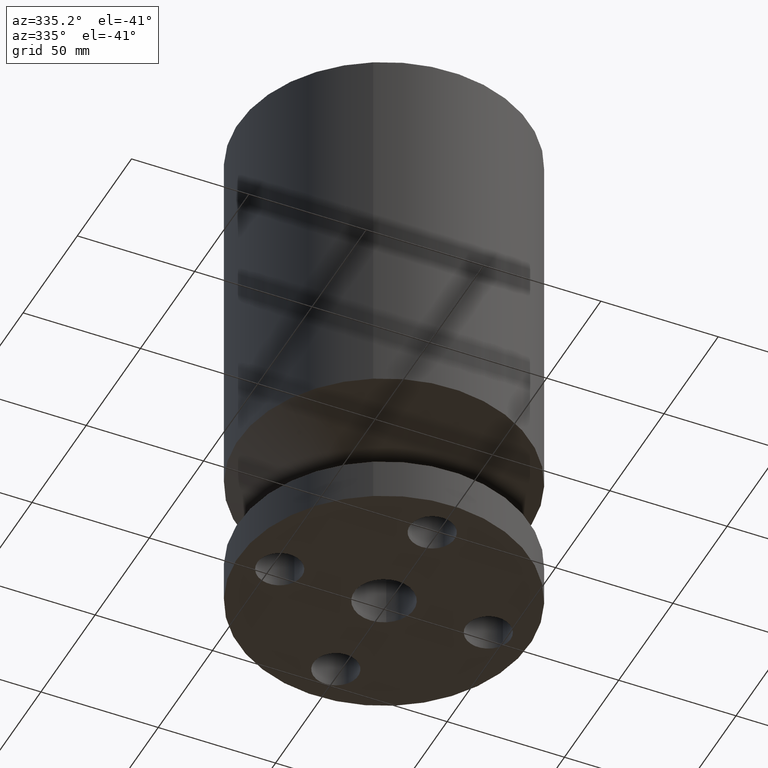
[diagram: clean part render]
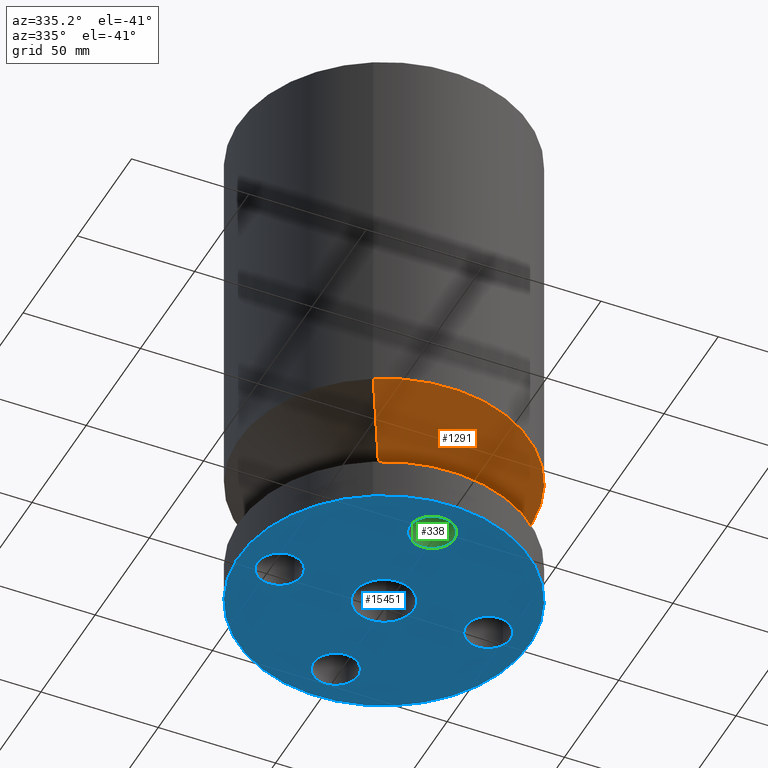
[diagram: same view with three faces highlighted in distinct colors, each labeled with its STEP entity id]
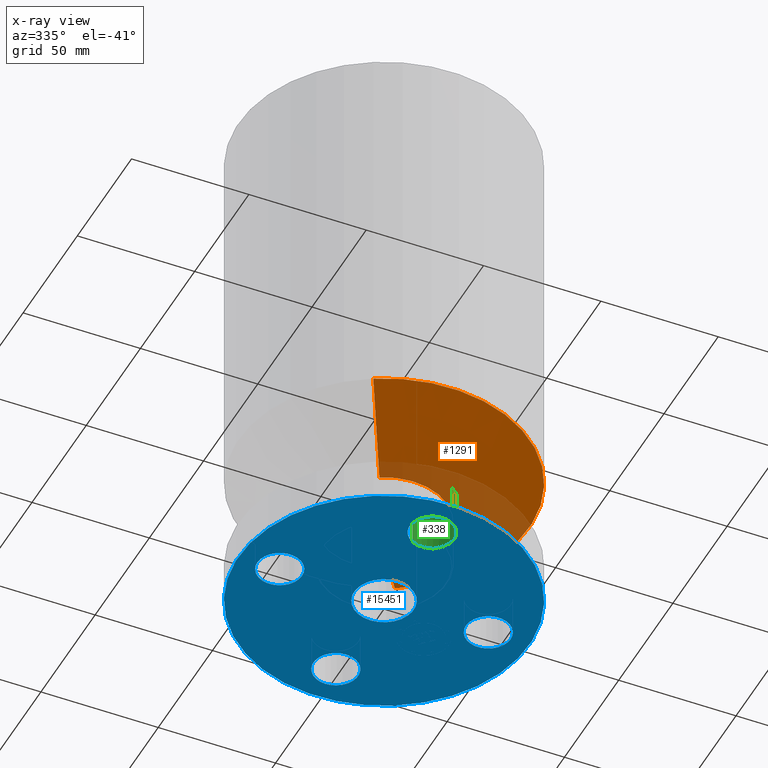
[diagram: x-ray of the same camera — body ghosted, the three highlighted faces saturated]
A machine part, auxiliary view with three faces highlighted in distinct colors.
The next image is the same camera in x-ray (body ghosted, the three faces saturated) — at least one of them is partly hidden behind the body in this view.
Their STEP definitions:

[orange] entity #1291 — the highlighted conical surface has half-angle 60 deg.
#719=AXIS2_PLACEMENT_3D('Circle Axis2P3D',#717,#718,$) ;
#1264=AXIS2_PLACEMENT_3D('Cone Axis2P3D',#1261,#1262,#1263) ;
#1275=AXIS2_PLACEMENT_3D('Circle Axis2P3D',#1273,#1274,$) ;
#714=CARTESIAN_POINT('Vertex',(0.508191070922,0.930237515608,1.57000000001)) ;
#717=CARTESIAN_POINT('Axis2P3D Location',(0.,0.,1.57000000001)) ;
#721=CARTESIAN_POINT('Vertex',(-0.508191070922,-0.930237515608,1.57000000001)) ;
#1261=CARTESIAN_POINT('Axis2P3D Location',(0.,0.,1.57000000001)) ;
#1266=CARTESIAN_POINT('Line Origine',(0.838994692561,1.53576948331,1.96837168575)) ;
#1270=CARTESIAN_POINT('Vertex',(1.1697983142,2.14130145102,2.36674337149)) ;
#1273=CARTESIAN_POINT('Axis2P3D Location',(0.,0.,2.36674337149)) ;
#1277=CARTESIAN_POINT('Vertex',(-1.1697983142,-2.14130145102,2.36674337149)) ;
#1280=CARTESIAN_POINT('Line Origine',(-0.838994692561,-1.53576948331,1.96837168575)) ;
#718=DIRECTION('Axis2P3D Direction',(0.,0.,-0.0393700787402)) ;
#1262=DIRECTION('Axis2P3D Direction',(-0.,-0.,0.0393700787402)) ;
#1263=DIRECTION('Axis2P3D XDirection',(0.0188750212049,0.0345504945626,0.)) ;
#1267=DIRECTION('Vector Direction',(0.0163462478604,0.0299216060045,0.0196850393701)) ;
#1274=DIRECTION('Axis2P3D Direction',(-0.,0.,0.0393700787402)) ;
#1281=DIRECTION('Vector Direction',(-0.0163462478604,-0.0299216060045,0.0196850393701)) ;
#1268=VECTOR('Line Direction',#1267,0.0393700787402) ;
#1282=VECTOR('Line Direction',#1281,0.0393700787402) ;
#1286=ORIENTED_EDGE('',*,*,#723,.F.) ;
#1287=ORIENTED_EDGE('',*,*,#1272,.T.) ;
#1288=ORIENTED_EDGE('',*,*,#1279,.T.) ;
#1289=ORIENTED_EDGE('',*,*,#1284,.F.) ;
#1291=ADVANCED_FACE('PartBody',(#1290),#1265,.T.) ;
#720=CIRCLE('generated circle',#719,1.06) ;
#1276=CIRCLE('generated circle',#1275,2.44000000001) ;
#1265=CONICAL_SURFACE('Cone',#1264,1.06,1.0471975512) ;
#723=EDGE_CURVE('',#715,#722,#720,.T.) ;
#1272=EDGE_CURVE('',#715,#1271,#1269,.T.) ;
#1279=EDGE_CURVE('',#1271,#1278,#1276,.F.) ;
#1284=EDGE_CURVE('',#722,#1278,#1283,.T.) ;
#1285=EDGE_LOOP('',(#1286,#1287,#1288,#1289)) ;
#1290=FACE_OUTER_BOUND('',#1285,.T.) ;
#1269=LINE('Line',#1266,#1268) ;
#1283=LINE('Line',#1280,#1282) ;
#715=VERTEX_POINT('',#714) ;
#722=VERTEX_POINT('',#721) ;
#1271=VERTEX_POINT('',#1270) ;
#1278=VERTEX_POINT('',#1277) ;

[blue] entity #15451 — the highlighted planar face has unit normal (0, 0, 1).
#51=AXIS2_PLACEMENT_3D('Circle Axis2P3D',#49,#50,$) ;
#200=AXIS2_PLACEMENT_3D('Circle Axis2P3D',#198,#199,$) ;
#217=AXIS2_PLACEMENT_3D('Circle Axis2P3D',#215,#216,$) ;
#243=AXIS2_PLACEMENT_3D('Circle Axis2P3D',#241,#242,$) ;
#310=AXIS2_PLACEMENT_3D('Circle Axis2P3D',#308,#309,$) ;
#329=AXIS2_PLACEMENT_3D('Circle Axis2P3D',#327,#328,$) ;
#353=AXIS2_PLACEMENT_3D('Circle Axis2P3D',#351,#352,$) ;
#372=AXIS2_PLACEMENT_3D('Circle Axis2P3D',#370,#371,$) ;
#396=AXIS2_PLACEMENT_3D('Circle Axis2P3D',#394,#395,$) ;
#415=AXIS2_PLACEMENT_3D('Circle Axis2P3D',#413,#414,$) ;
#15386=AXIS2_PLACEMENT_3D('Circle Axis2P3D',#15384,#15385,$) ;
#15412=AXIS2_PLACEMENT_3D('Circle Axis2P3D',#15410,#15411,$) ;
#15425=AXIS2_PLACEMENT_3D('Plane Axis2P3D',#15422,#15423,#15424) ;
#46=CARTESIAN_POINT('Vertex',(2.07909346072,0.179784576977,2.2401153548E-016)) ;
#49=CARTESIAN_POINT('Axis2P3D Location',(1.75000000001,0.,0.)) ;
#53=CARTESIAN_POINT('Vertex',(1.4209065393,-0.179784576977,2.2401153548E-016)) ;
#198=CARTESIAN_POINT('Axis2P3D Location',(1.75000000001,0.,0.)) ;
#215=CARTESIAN_POINT('Axis2P3D Location',(0.,0.,5.59482469102E-016)) ;
#219=CARTESIAN_POINT('Vertex',(-1.1697983142,-2.14130145102,0.)) ;
#221=CARTESIAN_POINT('Vertex',(1.1697983142,2.14130145102,0.)) ;
#241=CARTESIAN_POINT('Axis2P3D Location',(0.,0.,5.59482469102E-016)) ;
#305=CARTESIAN_POINT('Vertex',(0.179784576977,-2.07909346072,2.2401153548E-016)) ;
#308=CARTESIAN_POINT('Axis2P3D Location',(1.07156594926E-016,-1.75000000001,0.)) ;
#312=CARTESIAN_POINT('Vertex',(-0.179784576977,-1.4209065393,2.2401153548E-016)) ;
#327=CARTESIAN_POINT('Axis2P3D Location',(1.07156594926E-016,-1.75000000001,0.)) ;
#348=CARTESIAN_POINT('Vertex',(-2.07909346072,-0.179784576977,2.2401153548E-016)) ;
#351=CARTESIAN_POINT('Axis2P3D Location',(-1.75000000001,-2.14313189852E-016,0.)) ;
#355=CARTESIAN_POINT('Vertex',(-1.4209065393,0.179784576977,2.2401153548E-016)) ;
#370=CARTESIAN_POINT('Axis2P3D Location',(-1.75000000001,-2.14313189852E-016,0.)) ;
#391=CARTESIAN_POINT('Vertex',(-0.179784576977,2.07909346072,2.2401153548E-016)) ;
#394=CARTESIAN_POINT('Axis2P3D Location',(-3.21469784777E-016,1.75000000001,0.)) ;
#398=CARTESIAN_POINT('Vertex',(0.179784576977,1.4209065393,2.2401153548E-016)) ;
#413=CARTESIAN_POINT('Axis2P3D Location',(-3.21469784777E-016,1.75000000001,0.)) ;
#15384=CARTESIAN_POINT('Axis2P3D Location',(0.,0.,0.)) ;
#15388=CARTESIAN_POINT('Vertex',(-0.239712769303,-0.438791280947,0.)) ;
#15390=CARTESIAN_POINT('Vertex',(0.239712769303,0.438791280947,0.)) ;
#15410=CARTESIAN_POINT('Axis2P3D Location',(0.,0.,0.)) ;
#15422=CARTESIAN_POINT('Axis2P3D Location',(0.,0.,0.)) ;
#50=DIRECTION('Axis2P3D Direction',(0.,-0.,0.0393700787402)) ;
#199=DIRECTION('Axis2P3D Direction',(0.,-0.,0.0393700787402)) ;
#216=DIRECTION('Axis2P3D Direction',(0.,0.,-0.0393700787402)) ;
#242=DIRECTION('Axis2P3D Direction',(0.,0.,-0.0393700787402)) ;
#309=DIRECTION('Axis2P3D Direction',(-0.,0.,0.0393700787402)) ;
#328=DIRECTION('Axis2P3D Direction',(-0.,0.,0.0393700787402)) ;
#352=DIRECTION('Axis2P3D Direction',(0.,0.,0.0393700787402)) ;
#371=DIRECTION('Axis2P3D Direction',(0.,0.,0.0393700787402)) ;
#395=DIRECTION('Axis2P3D Direction',(0.,0.,0.0393700787402)) ;
#414=DIRECTION('Axis2P3D Direction',(0.,0.,0.0393700787402)) ;
#15385=DIRECTION('Axis2P3D Direction',(0.,0.,-0.0393700787402)) ;
#15411=DIRECTION('Axis2P3D Direction',(0.,0.,-0.0393700787402)) ;
#15423=DIRECTION('Axis2P3D Direction',(0.,0.,0.0393700787402)) ;
#15424=DIRECTION('Axis2P3D XDirection',(0.0393700787402,0.,0.)) ;
#15428=ORIENTED_EDGE('',*,*,#245,.T.) ;
#15429=ORIENTED_EDGE('',*,*,#223,.T.) ;
#15432=ORIENTED_EDGE('',*,*,#400,.F.) ;
#15433=ORIENTED_EDGE('',*,*,#417,.F.) ;
#15436=ORIENTED_EDGE('',*,*,#357,.F.) ;
#15437=ORIENTED_EDGE('',*,*,#374,.F.) ;
#15440=ORIENTED_EDGE('',*,*,#314,.F.) ;
#15441=ORIENTED_EDGE('',*,*,#331,.F.) ;
#15444=ORIENTED_EDGE('',*,*,#202,.F.) ;
#15445=ORIENTED_EDGE('',*,*,#55,.F.) ;
#15448=ORIENTED_EDGE('',*,*,#15414,.T.) ;
#15449=ORIENTED_EDGE('',*,*,#15392,.T.) ;
#15434=FACE_BOUND('',#15431,.T.) ;
#15438=FACE_BOUND('',#15435,.T.) ;
#15442=FACE_BOUND('',#15439,.T.) ;
#15446=FACE_BOUND('',#15443,.T.) ;
#15450=FACE_BOUND('',#15447,.T.) ;
#15451=ADVANCED_FACE('PartBody',(#15430,#15434,#15438,#15442,#15446,#15450),#15426,.F.) ;
#52=CIRCLE('generated circle',#51,0.375000000001) ;
#201=CIRCLE('generated circle',#200,0.375000000001) ;
#218=CIRCLE('generated circle',#217,2.44000000001) ;
#244=CIRCLE('generated circle',#243,2.44000000001) ;
#311=CIRCLE('generated circle',#310,0.375000000001) ;
#330=CIRCLE('generated circle',#329,0.375000000001) ;
#354=CIRCLE('generated circle',#353,0.375000000002) ;
#373=CIRCLE('generated circle',#372,0.375000000002) ;
#397=CIRCLE('generated circle',#396,0.375000000001) ;
#416=CIRCLE('generated circle',#415,0.375000000001) ;
#15387=CIRCLE('generated circle',#15386,0.500000000002) ;
#15413=CIRCLE('generated circle',#15412,0.500000000002) ;
#55=EDGE_CURVE('',#47,#54,#52,.F.) ;
#202=EDGE_CURVE('',#54,#47,#201,.F.) ;
#223=EDGE_CURVE('',#220,#222,#218,.T.) ;
#245=EDGE_CURVE('',#222,#220,#244,.T.) ;
#314=EDGE_CURVE('',#306,#313,#311,.F.) ;
#331=EDGE_CURVE('',#313,#306,#330,.F.) ;
#357=EDGE_CURVE('',#349,#356,#354,.F.) ;
#374=EDGE_CURVE('',#356,#349,#373,.F.) ;
#400=EDGE_CURVE('',#392,#399,#397,.F.) ;
#417=EDGE_CURVE('',#399,#392,#416,.F.) ;
#15392=EDGE_CURVE('',#15389,#15391,#15387,.F.) ;
#15414=EDGE_CURVE('',#15391,#15389,#15413,.F.) ;
#15427=EDGE_LOOP('',(#15428,#15429)) ;
#15431=EDGE_LOOP('',(#15432,#15433)) ;
#15435=EDGE_LOOP('',(#15436,#15437)) ;
#15439=EDGE_LOOP('',(#15440,#15441)) ;
#15443=EDGE_LOOP('',(#15444,#15445)) ;
#15447=EDGE_LOOP('',(#15448,#15449)) ;
#15430=FACE_OUTER_BOUND('',#15427,.T.) ;
#15426=PLANE('',#15425) ;
#47=VERTEX_POINT('',#46) ;
#54=VERTEX_POINT('',#53) ;
#220=VERTEX_POINT('',#219) ;
#222=VERTEX_POINT('',#221) ;
#306=VERTEX_POINT('',#305) ;
#313=VERTEX_POINT('',#312) ;
#349=VERTEX_POINT('',#348) ;
#356=VERTEX_POINT('',#355) ;
#392=VERTEX_POINT('',#391) ;
#399=VERTEX_POINT('',#398) ;
#15389=VERTEX_POINT('',#15388) ;
#15391=VERTEX_POINT('',#15390) ;

[green] entity #338 — the highlighted cylindrical surface (edge-blend (fillet) strip) has radius 9.525 mm, axis along (-0, 0, 1).
#127=AXIS2_PLACEMENT_3D('Circle Axis2P3D',#125,#126,$) ;
#299=AXIS2_PLACEMENT_3D('Cylinder Axis2P3D',#296,#297,#298) ;
#329=AXIS2_PLACEMENT_3D('Circle Axis2P3D',#327,#328,$) ;
#125=CARTESIAN_POINT('Axis2P3D Location',(2.79741234551E-016,-1.75000000001,0.690000000003)) ;
#129=CARTESIAN_POINT('Vertex',(-0.179784576977,-1.4209065393,0.690000000003)) ;
#131=CARTESIAN_POINT('Vertex',(0.179784576977,-2.07909346072,0.690000000003)) ;
#296=CARTESIAN_POINT('Axis2P3D Location',(1.07156594926E-016,-1.75000000001,0.00393700787402)) ;
#301=CARTESIAN_POINT('Line Origine',(0.179784576977,-2.07909346072,0.345000000001)) ;
#305=CARTESIAN_POINT('Vertex',(0.179784576977,-2.07909346072,2.2401153548E-016)) ;
#312=CARTESIAN_POINT('Vertex',(-0.179784576977,-1.4209065393,2.2401153548E-016)) ;
#315=CARTESIAN_POINT('Line Origine',(-0.179784576977,-1.4209065393,0.345000000001)) ;
#327=CARTESIAN_POINT('Axis2P3D Location',(1.07156594926E-016,-1.75000000001,0.)) ;
#126=DIRECTION('Axis2P3D Direction',(0.,0.,-0.0393700787402)) ;
#297=DIRECTION('Axis2P3D Direction',(-0.,0.,0.0393700787402)) ;
#298=DIRECTION('Axis2P3D XDirection',(0.0188750212049,-0.0345504945626,0.)) ;
#302=DIRECTION('Vector Direction',(0.,0.,0.0393700787402)) ;
#316=DIRECTION('Vector Direction',(0.,0.,0.0393700787402)) ;
#328=DIRECTION('Axis2P3D Direction',(-0.,0.,0.0393700787402)) ;
#303=VECTOR('Line Direction',#302,0.0393700787402) ;
#317=VECTOR('Line Direction',#316,0.0393700787402) ;
#333=ORIENTED_EDGE('',*,*,#319,.T.) ;
#334=ORIENTED_EDGE('',*,*,#331,.T.) ;
#335=ORIENTED_EDGE('',*,*,#307,.F.) ;
#336=ORIENTED_EDGE('',*,*,#133,.F.) ;
#338=ADVANCED_FACE('PartBody',(#337),#300,.F.) ;
#128=CIRCLE('generated circle',#127,0.375000000001) ;
#330=CIRCLE('generated circle',#329,0.375000000001) ;
#300=CYLINDRICAL_SURFACE('generated cylinder',#299,0.375000000001) ;
#133=EDGE_CURVE('',#130,#132,#128,.T.) ;
#307=EDGE_CURVE('',#132,#306,#304,.F.) ;
#319=EDGE_CURVE('',#130,#313,#318,.F.) ;
#331=EDGE_CURVE('',#313,#306,#330,.F.) ;
#332=EDGE_LOOP('',(#333,#334,#335,#336)) ;
#337=FACE_OUTER_BOUND('',#332,.T.) ;
#304=LINE('Line',#301,#303) ;
#318=LINE('Line',#315,#317) ;
#130=VERTEX_POINT('',#129) ;
#132=VERTEX_POINT('',#131) ;
#306=VERTEX_POINT('',#305) ;
#313=VERTEX_POINT('',#312) ;